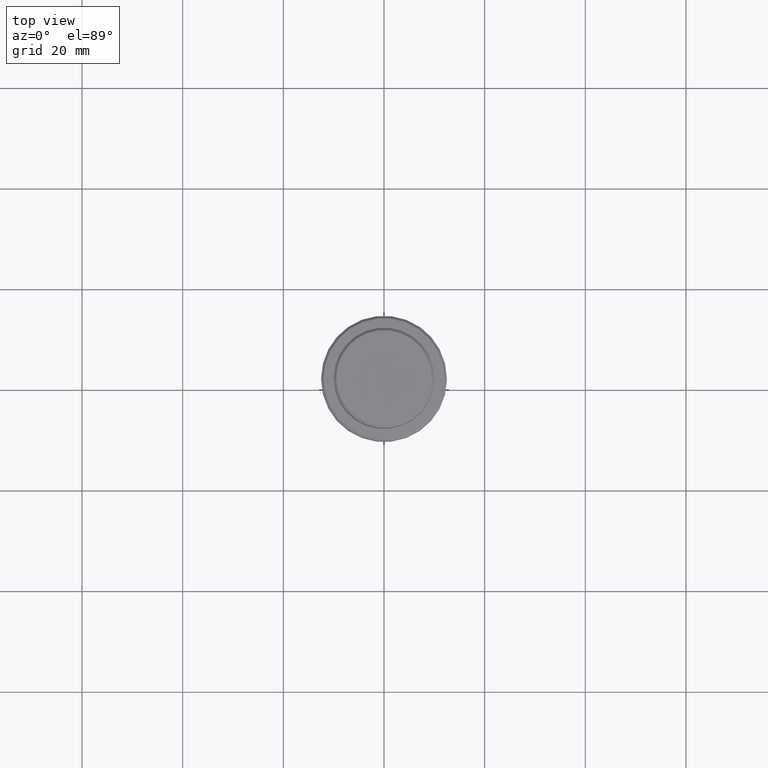
[diagram: clean part render]
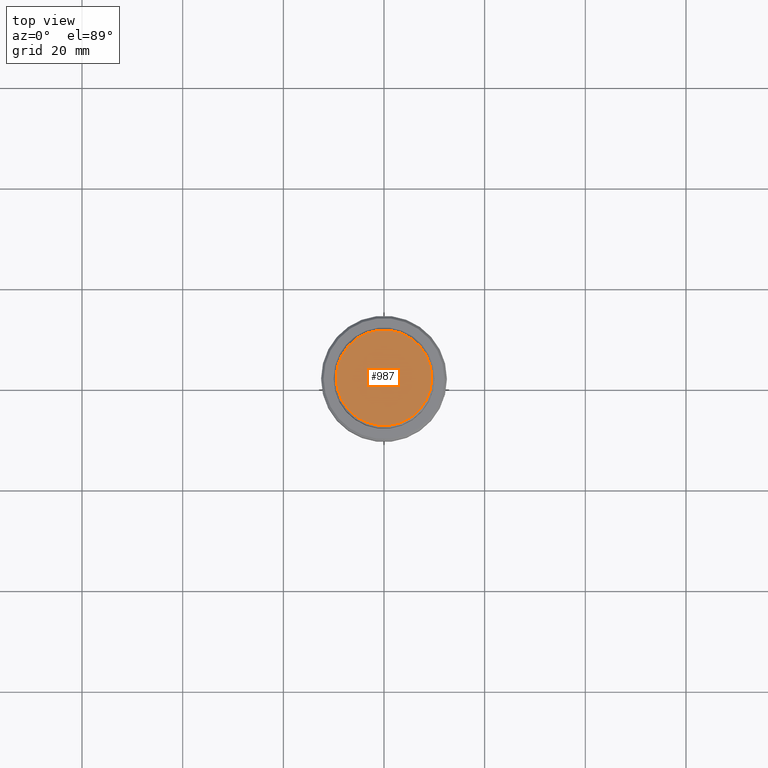
[diagram: same view with one face highlighted and labeled with its STEP entity id]
A machine part, top view. The second image highlights one B-rep face of the part: STEP entity #987.
In plain terms, the highlighted planar face has unit normal (0, -0, 1).
Its self-contained STEP definition (entity closure, byte-faithful):
#72 = CARTESIAN_POINT ( 'NONE',  ( 9.500000000000023093, 1.194030629168670653E-15, 0.000000000000000000 ) ) ;
#82 = AXIS2_PLACEMENT_3D ( 'NONE', #374, #915, #579 ) ;
#186 = EDGE_CURVE ( 'NONE', #418, #213, #1101, .T. ) ;
#213 = VERTEX_POINT ( 'NONE', #943 ) ;
#257 = FACE_OUTER_BOUND ( 'NONE', #1074, .T. ) ;
#374 = CARTESIAN_POINT ( 'NONE',  ( 0.000000000000000000, 0.000000000000000000, 0.000000000000000000 ) ) ;
#375 = EDGE_CURVE ( 'NONE', #213, #418, #1217, .T. ) ;
#418 = VERTEX_POINT ( 'NONE', #72 ) ;
#553 = CARTESIAN_POINT ( 'NONE',  ( 0.000000000000000000, 0.000000000000000000, 0.000000000000000000 ) ) ;
#579 = DIRECTION ( 'NONE',  ( 1.000000000000000000, 0.000000000000000000, 0.000000000000000000 ) ) ;
#665 = DIRECTION ( 'NONE',  ( -0.000000000000000000, -0.000000000000000000, 1.000000000000000000 ) ) ;
#696 = AXIS2_PLACEMENT_3D ( 'NONE', #553, #665, #1094 ) ;
#738 = CARTESIAN_POINT ( 'NONE',  ( 0.000000000000000000, 0.000000000000000000, 0.000000000000000000 ) ) ;
#915 = DIRECTION ( 'NONE',  ( 0.000000000000000000, -0.000000000000000000, 1.000000000000000000 ) ) ;
#933 = PLANE ( 'NONE',  #82 ) ;
#943 = CARTESIAN_POINT ( 'NONE',  ( -9.500000000000023093, 0.000000000000000000, 0.000000000000000000 ) ) ;
#987 = ADVANCED_FACE ( 'NONE', ( #257 ), #933, .T. ) ;
#1074 = EDGE_LOOP ( 'NONE', ( #1190, #1272 ) ) ;
#1094 = DIRECTION ( 'NONE',  ( 1.000000000000000000, 0.000000000000000000, 0.000000000000000000 ) ) ;
#1101 = CIRCLE ( 'NONE', #696, 9.500000000000023093 ) ;
#1160 = DIRECTION ( 'NONE',  ( -0.000000000000000000, -0.000000000000000000, 1.000000000000000000 ) ) ;
#1190 = ORIENTED_EDGE ( 'NONE', *, *, #375, .T. ) ;
#1217 = CIRCLE ( 'NONE', #1240, 9.500000000000023093 ) ;
#1240 = AXIS2_PLACEMENT_3D ( 'NONE', #738, #1160, #1385 ) ;
#1272 = ORIENTED_EDGE ( 'NONE', *, *, #186, .T. ) ;
#1385 = DIRECTION ( 'NONE',  ( 1.000000000000000000, 0.000000000000000000, 0.000000000000000000 ) ) ;